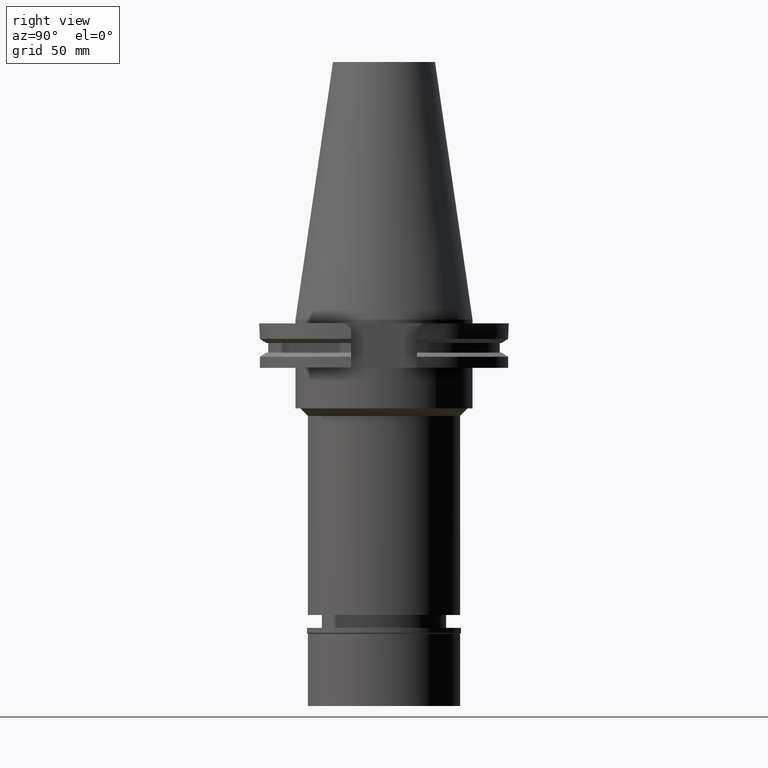
[diagram: clean part render]
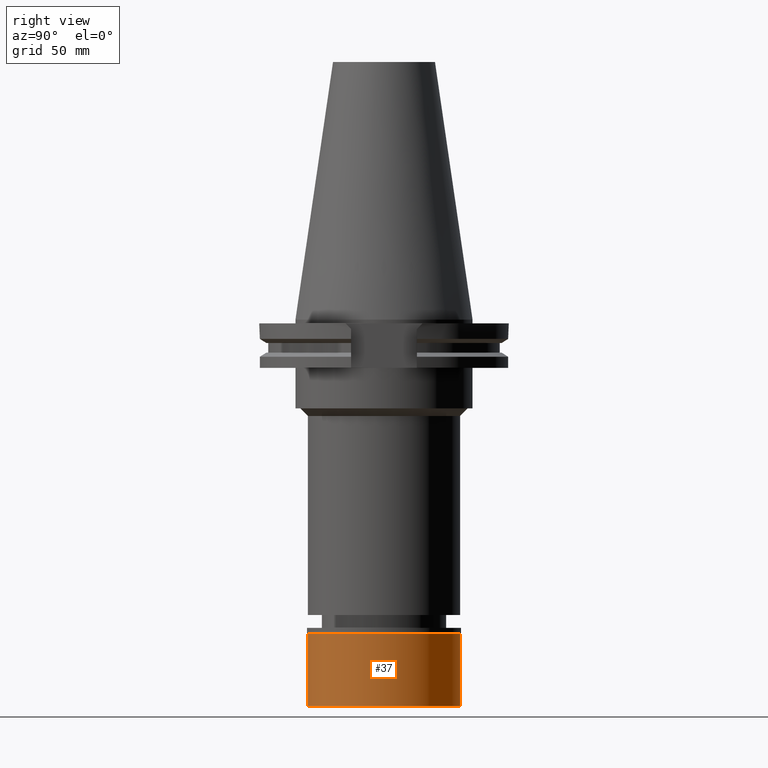
[diagram: same view with one face highlighted and labeled with its STEP entity id]
A machine part, right view. The second image highlights one B-rep face of the part: STEP entity #37.
In plain terms, the highlighted cylindrical surface (partial cylindrical patch) has radius 30 mm, axis along (0, 0, -1).
Its self-contained STEP definition (entity closure, byte-faithful):
#6 = CIRCLE ( 'NONE', #2013, 30.00000000000000000 ) ;
#37 = ADVANCED_FACE ( 'NONE', ( #272 ), #1239, .T. ) ;
#38 = CARTESIAN_POINT ( 'NONE',  ( 0.0000000000000000000, -30.00000000000000000, -2.299999999999999822 ) ) ;
#185 = VERTEX_POINT ( 'NONE', #2102 ) ;
#272 = FACE_OUTER_BOUND ( 'NONE', #760, .T. ) ;
#273 = DIRECTION ( 'NONE',  ( 0.0000000000000000000, -1.000000000000000000, 0.0000000000000000000 ) ) ;
#372 = ORIENTED_EDGE ( 'NONE', *, *, #1459, .T. ) ;
#445 = DIRECTION ( 'NONE',  ( 0.0000000000000000000, 0.0000000000000000000, -1.000000000000000000 ) ) ;
#511 = DIRECTION ( 'NONE',  ( 0.0000000000000000000, -1.000000000000000000, 0.0000000000000000000 ) ) ;
#535 = DIRECTION ( 'NONE',  ( 0.0000000000000000000, 0.0000000000000000000, -1.000000000000000000 ) ) ;
#760 = EDGE_LOOP ( 'NONE', ( #1406, #2256, #372, #1413 ) ) ;
#781 = CARTESIAN_POINT ( 'NONE',  ( 0.0000000000000000000, 0.0000000000000000000, -30.80000000000000071 ) ) ;
#916 = CARTESIAN_POINT ( 'NONE',  ( 0.0000000000000000000, 30.00000000000000000, -2.299999999999999822 ) ) ;
#1213 = VECTOR ( 'NONE', #1768, 1000.000000000000000 ) ;
#1239 = CYLINDRICAL_SURFACE ( 'NONE', #2812, 30.00000000000000000 ) ;
#1337 = CARTESIAN_POINT ( 'NONE',  ( 0.0000000000000000000, 30.00000000000000000, -2.299999999999999822 ) ) ;
#1366 = EDGE_CURVE ( 'NONE', #2909, #2921, #2060, .T. ) ;
#1373 = LINE ( 'NONE', #916, #2962 ) ;
#1406 = ORIENTED_EDGE ( 'NONE', *, *, #1366, .T. ) ;
#1413 = ORIENTED_EDGE ( 'NONE', *, *, #2618, .F. ) ;
#1447 = DIRECTION ( 'NONE',  ( 0.0000000000000000000, 1.000000000000000000, 0.0000000000000000000 ) ) ;
#1459 = EDGE_CURVE ( 'NONE', #185, #3115, #6, .T. ) ;
#1517 = LINE ( 'NONE', #2248, #1213 ) ;
#1768 = DIRECTION ( 'NONE',  ( 0.0000000000000000000, 0.0000000000000000000, -1.000000000000000000 ) ) ;
#1909 = DIRECTION ( 'NONE',  ( 0.0000000000000000000, 0.0000000000000000000, -1.000000000000000000 ) ) ;
#2013 = AXIS2_PLACEMENT_3D ( 'NONE', #781, #2272, #273 ) ;
#2060 = CIRCLE ( 'NONE', #2933, 30.00000000000000000 ) ;
#2102 = CARTESIAN_POINT ( 'NONE',  ( 0.0000000000000000000, -30.00000000000000000, -30.80000000000000071 ) ) ;
#2192 = CARTESIAN_POINT ( 'NONE',  ( 0.0000000000000000000, 0.0000000000000000000, -2.299999999999999822 ) ) ;
#2243 = CARTESIAN_POINT ( 'NONE',  ( 0.0000000000000000000, 0.0000000000000000000, 0.0000000000000000000 ) ) ;
#2248 = CARTESIAN_POINT ( 'NONE',  ( 0.0000000000000000000, -30.00000000000000000, -2.299999999999999822 ) ) ;
#2256 = ORIENTED_EDGE ( 'NONE', *, *, #2277, .T. ) ;
#2272 = DIRECTION ( 'NONE',  ( 0.0000000000000000000, 0.0000000000000000000, 1.000000000000000000 ) ) ;
#2277 = EDGE_CURVE ( 'NONE', #2921, #185, #1517, .T. ) ;
#2618 = EDGE_CURVE ( 'NONE', #2909, #3115, #1373, .T. ) ;
#2632 = CARTESIAN_POINT ( 'NONE',  ( 0.0000000000000000000, 30.00000000000000000, -30.80000000000000071 ) ) ;
#2812 = AXIS2_PLACEMENT_3D ( 'NONE', #2243, #535, #511 ) ;
#2909 = VERTEX_POINT ( 'NONE', #1337 ) ;
#2921 = VERTEX_POINT ( 'NONE', #38 ) ;
#2933 = AXIS2_PLACEMENT_3D ( 'NONE', #2192, #445, #1447 ) ;
#2962 = VECTOR ( 'NONE', #1909, 1000.000000000000000 ) ;
#3115 = VERTEX_POINT ( 'NONE', #2632 ) ;